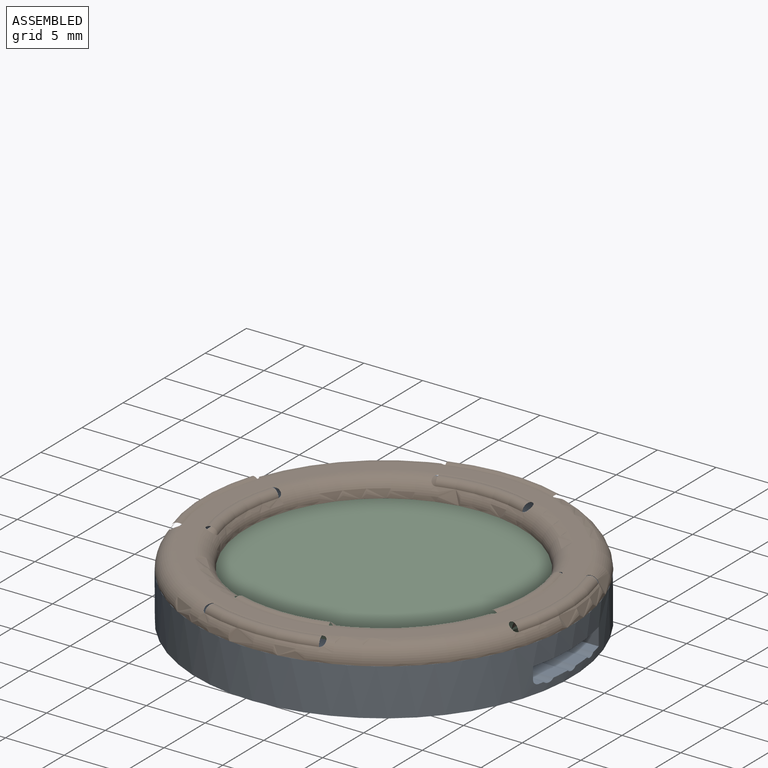
[diagram: assembled view]
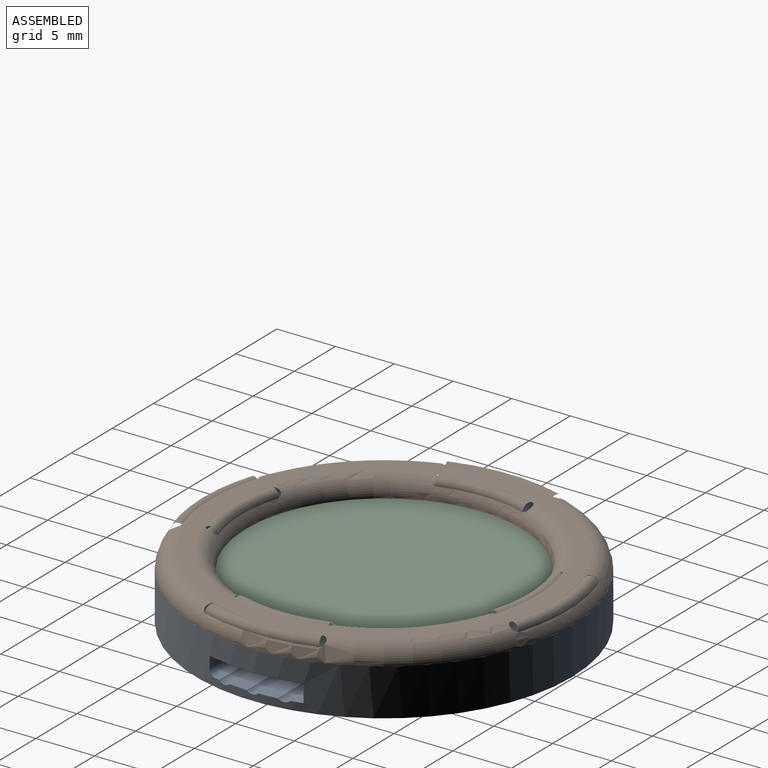
[diagram: assembled view, second angle]
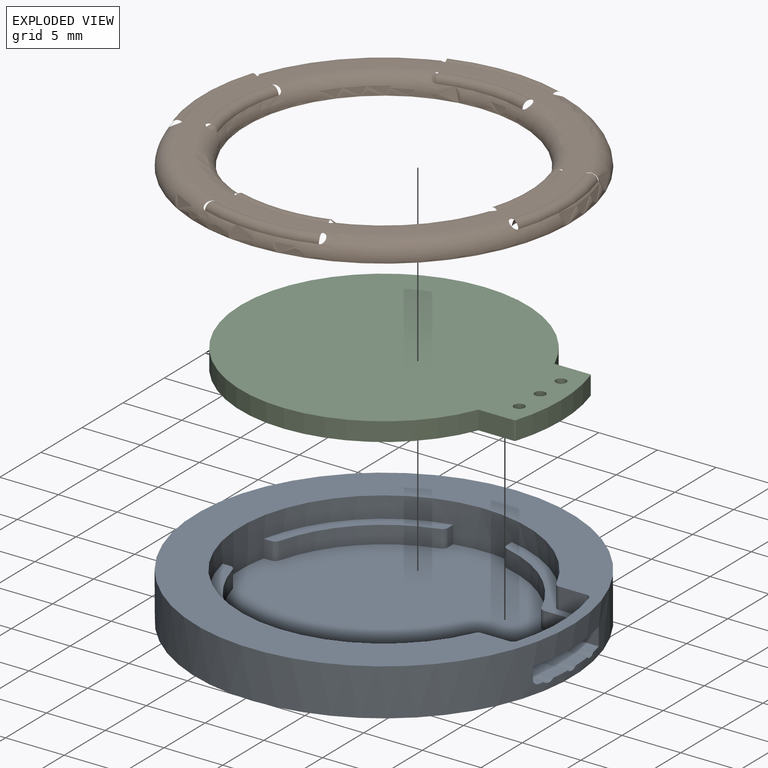
[diagram: exploded view]
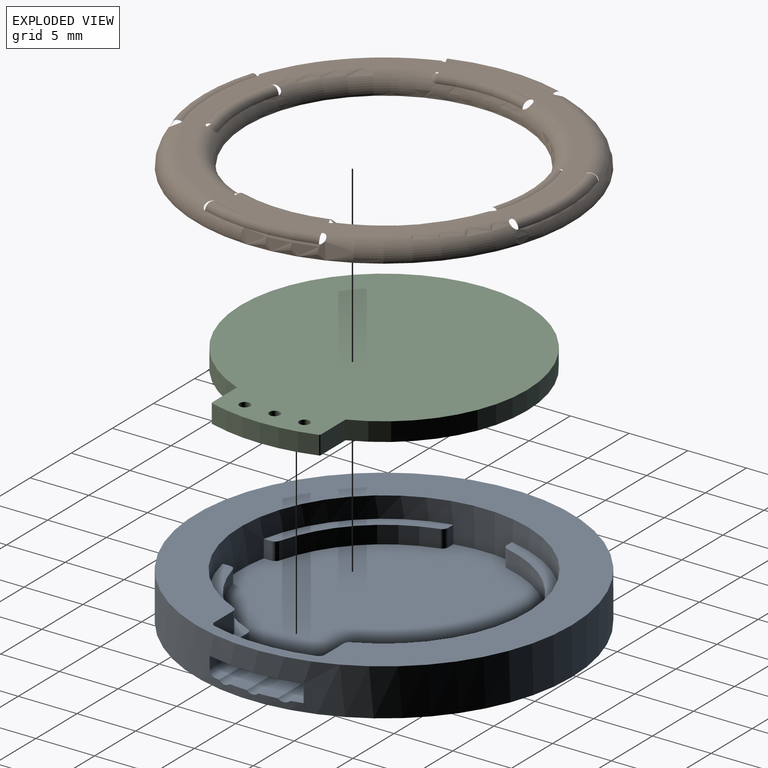
[diagram: exploded view, second angle]
ASSEMBLY  parts=3 mates=4
PART A: 48 faces, bbox 32x4x32 mm
  f0: cylinder r=16mm len=32mm, axis (0,1,0), area 389.6mm2, adj f1,f7,f8,f22,f23,f24,f25,f26
  f1: plane 28.24x24.5mm, normal (0,-1,0), area 427.7mm2, adj f0,f3,f12,f13,f14,f15,f18,f19
  f2: plane 12.01x7.99mm, normal (0,-1,0), area 13.9mm2, adj f9,f10,f12,f16,f17,f24,f29,f33
  f3: cylinder r=11.25mm len=7.52mm, axis (0,-1,0), area 15.5mm2, adj f1,f5,f28,f34
  f4: plane 9.49x9.49mm, normal (0,-1,0), area 13.4mm2, adj f12,f13,f14,f15,f31,f32
  f5: plane 12.01x7.99mm, normal (0,-1,0), area 13.9mm2, adj f3,f10,f11,f12,f18,f23,f28,f34
  f6: plane 9.49x9.49mm, normal (0,-1,0), area 13.4mm2, adj f12,f19,f20,f21,f30,f35
  f7: plane 32x32mm, normal (0,1,0), area 804.2mm2, adj f0
  f8: plane 32x32mm, normal (0,-1,0), area 305.9mm2, adj f0,f9,f10,f11,f12,f36,f37,f38
  f9: plane 2.29x1.8mm, normal (0,0,1), area 4.1mm2, adj f2,f8,f36,f39
  f10: cylinder r=15.05mm len=8.69mm, axis (0,-1,0), area 15.9mm2, adj f2,f5,f8,f22,f36,f37
  f11: plane 2.29x1.8mm, normal (0,0,-1), area 4.1mm2, adj f5,f8,f37,f38
  f12: cylinder r=12.25mm len=24.5mm, axis (0,-1,0), area 142.6mm2, adj f1,f2,f4,f5,f6,f8,f13,f15
  f13: plane 1.5x0.63mm, normal (0,0,1), area 0.9mm2, adj f1,f4,f12,f31
  f14: cylinder r=11.25mm len=8mm, axis (0,-1,0), area 17.8mm2, adj f1,f4,f31,f32
  f15: plane 1.5x0.63mm, normal (1,0,0), area 0.9mm2, adj f1,f4,f12,f32
  f16: plane 1x0.63mm, normal (-1,0,0), area 0.6mm2, adj f2,f12,f33,f44
  f17: cylinder r=11.25mm len=7.52mm, axis (0,-1,0), area 10.3mm2, adj f2,f29,f33,f42
  f18: plane 1.5x0.63mm, normal (-1,0,0), area 0.9mm2, adj f1,f5,f12,f34
  f19: plane 1.5x0.63mm, normal (1,0,0), area 0.9mm2, adj f1,f6,f12,f35
  f20: cylinder r=11.25mm len=8mm, axis (0,-1,0), area 17.8mm2, adj f1,f6,f30,f35
  f21: plane 1.5x0.63mm, normal (0,0,-1), area 0.9mm2, adj f1,f6,f12,f30
  f22: plane 8x1.49mm, normal (0,1,0), area 7.7mm2, adj f0,f10,f23,f24
  f23: plane 4.64x1.5mm, normal (0,0,-1), area 7mm2, adj f0,f1,f5,f22,f28
  f24: plane 4.64x1mm, normal (0,0,1), area 4.6mm2, adj f0,f2,f22,f29,f40
  f25: cylinder r=0.7mm len=4.98mm, axis (-1,0,0), area 5.4mm2, adj f0,f1,f47
  f26: cylinder r=0.7mm len=4.85mm, axis (-1,0,0), area 5.2mm2, adj f0,f1,f46
  f27: cylinder r=0.7mm len=4.85mm, axis (-1,0,0), area 5.2mm2, adj f0,f1,f45
  f28: cylinder r=0.5mm len=1.5mm, axis (0,-1,0), area 0.9mm2, adj f1,f3,f5,f23
  f29: cylinder r=0.5mm len=1mm, axis (0,-1,0), area 0.6mm2, adj f2,f17,f24,f41
  f30: cylinder r=0.5mm len=1.5mm, axis (0,-1,0), area 1mm2, adj f1,f6,f20,f21
  f31: cylinder r=0.5mm len=1.5mm, axis (0,-1,0), area 1mm2, adj f1,f4,f13,f14
  f32: cylinder r=0.5mm len=1.5mm, axis (0,-1,0), area 1mm2, adj f1,f4,f14,f15
  f33: cylinder r=0.5mm len=1mm, axis (0,-1,0), area 0.7mm2, adj f2,f16,f17,f43
  f34: cylinder r=0.5mm len=1.5mm, axis (0,-1,0), area 1mm2, adj f1,f3,f5,f18
  f35: cylinder r=0.5mm len=1.5mm, axis (0,-1,0), area 1mm2, adj f1,f6,f19,f20
  f36: cylinder r=0.5mm len=1.8mm, axis (0,-1,0), area 1.2mm2, adj f2,f8,f9,f10
  f37: cylinder r=0.5mm len=1.8mm, axis (0,-1,0), area 1.2mm2, adj f5,f8,f10,f11
  f38: cylinder r=0.5mm len=1.8mm, axis (0,-1,0), area 1mm2, adj f5,f8,f11,f12
  f39: cylinder r=0.5mm len=1.8mm, axis (0,-1,0), area 1mm2, adj f2,f8,f9,f12
  f40: cylinder r=0.5mm len=4.76mm, axis (-1,0,0), area 3.7mm2, adj f0,f1,f24,f41
  f41: torus R=1mm, axis (0,-1,0), area 0.6mm2, adj f1,f29,f40,f42
  f42: torus R=10.75mm, axis (0,-1,0), area 8mm2, adj f1,f17,f41,f43
  f43: torus R=1mm, axis (0,-1,0), area 0.7mm2, adj f1,f33,f42,f44
  f44: cylinder r=0.5mm len=0.73mm, axis (0,0,1), area 0.5mm2, adj f1,f12,f16,f43
  f45: torus R=0.2mm, axis (1,0,0), area 0.4mm2, adj f1,f27
  f46: torus R=0.2mm, axis (1,0,0), area 0.4mm2, adj f1,f26
  f47: torus R=0.2mm, axis (1,0,0), area 0.4mm2, adj f1,f25
PART B: 31 faces, bbox 34.6x2.6x34.6 mm
  f0: torus R=13.25mm, axis (0,-1,0), area 147.8mm2, adj f1,f3,f5,f6,f8,f11,f12,f14
  f1: plane 29x29mm, normal (0,-1,0), area 109mm2, adj f0,f2
  f2: torus R=14.5mm, axis (0,-1,0), area 187mm2, adj f1,f3,f4,f7,f9,f10,f13,f15
  f3: plane 32x32mm, normal (0,1,0), area 361.1mm2, adj f0,f2,f28,f29,f30
  f4: torus R=15.03mm, axis (0,1,0), area 11.6mm2, adj f2,f7,f9
  f5: torus R=12.72mm, axis (0,1,0), area 9.3mm2, adj f0,f6,f8
  f6: bspline ~1.05x0.78mm, area 0mm2, adj f0,f5
  f7: bspline ~1.06x0.79mm, area 0mm2, adj f2,f4
  f8: bspline ~1.03x0.77mm, area 0mm2, adj f0,f5
  f9: bspline ~1.08x0.8mm, area 0mm2, adj f2,f4
  f10: torus R=15.03mm, axis (0,1,0), area 11.6mm2, adj f2,f13,f15
  f11: torus R=12.72mm, axis (0,1,0), area 9.3mm2, adj f0,f12,f14
  f12: bspline ~1.05x0.78mm, area 0mm2, adj f0,f11
  f13: bspline ~1.06x0.79mm, area 0mm2, adj f2,f10
  f14: bspline ~1.03x0.77mm, area 0mm2, adj f0,f11
  f15: bspline ~1.08x0.8mm, area 0mm2, adj f2,f10
  f16: torus R=15.03mm, axis (0,1,0), area 11.6mm2, adj f2,f19,f21
  f17: torus R=12.72mm, axis (0,1,0), area 9.3mm2, adj f0,f18,f20
  f18: bspline ~1.05x0.78mm, area 0mm2, adj f0,f17
  f19: bspline ~1.06x0.79mm, area 0mm2, adj f2,f16
  f20: bspline ~1.03x0.77mm, area 0mm2, adj f0,f17
  f21: bspline ~1.08x0.8mm, area 0mm2, adj f2,f16
  f22: torus R=15.03mm, axis (0,1,0), area 11.6mm2, adj f2,f25,f27
  f23: torus R=12.72mm, axis (0,1,0), area 9.3mm2, adj f0,f24,f26
  f24: bspline ~1.05x0.78mm, area 0mm2, adj f0,f23
  f25: bspline ~1.06x0.79mm, area 0mm2, adj f2,f22
  f26: bspline ~1.03x0.77mm, area 0mm2, adj f0,f23
  f27: bspline ~1.08x0.8mm, area 0mm2, adj f2,f22
  f28: sphere r=1mm, area 6.3mm2, adj f3
  f29: sphere r=1mm, area 6.3mm2, adj f3
  f30: sphere r=1mm, area 6.3mm2, adj f3
PART C: 12 faces, bbox 27.3x24.4x1.6 mm
  f0: cylinder r=12.2mm len=24.4mm, axis (0,0,-1), area 106.9mm2, adj f1,f6,f10,f11
  f1: plane 3.01x1.59mm, normal (0,1,0), area 4.8mm2, adj f0,f2,f10,f11
  f2: cylinder r=0.13mm len=1.59mm, axis (0,0,-1), area 0.3mm2, adj f1,f3,f10,f11
  f3: cylinder r=15.12mm len=9.08mm, axis (0,0,-1), area 14.7mm2, adj f2,f4,f10,f11
  f4: cylinder r=0.13mm len=1.59mm, axis (0,0,-1), area 0.3mm2, adj f3,f5,f10,f11
  f5: cylinder r=0.11mm len=1.59mm, axis (0,0,-1), area 0.1mm2, adj f4,f6,f10,f11
  f6: plane 2.91x1.59mm, normal (0,-1,0), area 4.6mm2, adj f0,f5,f10,f11
  f7: cylinder r=0.45mm len=1.59mm, axis (0,0,-1), area 4.5mm2, adj f10,f11
  f8: cylinder r=0.45mm len=1.59mm, axis (0,0,-1), area 4.5mm2, adj f10,f11
  f9: cylinder r=0.45mm len=1.59mm, axis (0,0,-1), area 4.5mm2, adj f10,f11
  f10: plane 27.32x24.4mm, normal (0,0,-1), area 493.1mm2, adj f0,f1,f2,f3,f4,f5,f6,f7
  f11: plane 27.32x24.4mm, normal (0,0,1), area 493.1mm2, adj f0,f1,f2,f3,f4,f5,f6,f7
PLACE A rot(axis=(-1,0,0),90deg) t=(11.46,4.67,-10.43)mm
PLACE B rot(axis=(-1,0,0),90deg) t=(11.46,4.67,-10.43)mm
PLACE C t=(11.46,4.67,-6.64)mm
MATE slider A.f12 <-> C.f0  axis (0,0,1) through (11.46,4.67,-8.08)mm
MATE planar C.f10 <-> A.f6  axis (0,0,-1) through (12.16,4.67,-8.23)mm
MATE revolute A.f0 <-> B.f0  axis (0,0,1) through (11.46,4.67,-6.43)mm
MATE planar B.f3 <-> A.f8  axis (0,0,-1) through (11.1,4.67,-6.43)mm
